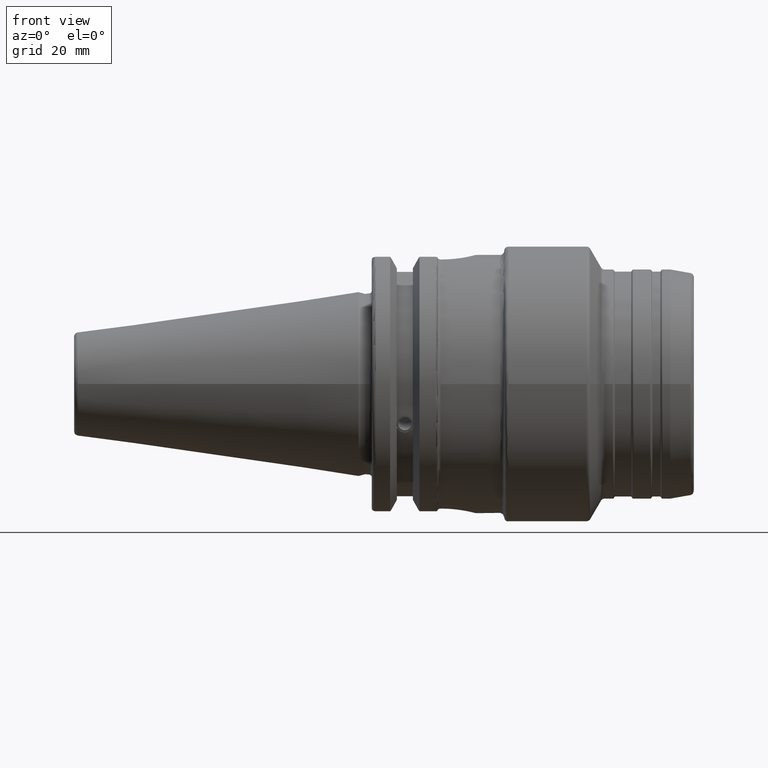
[diagram: clean part render]
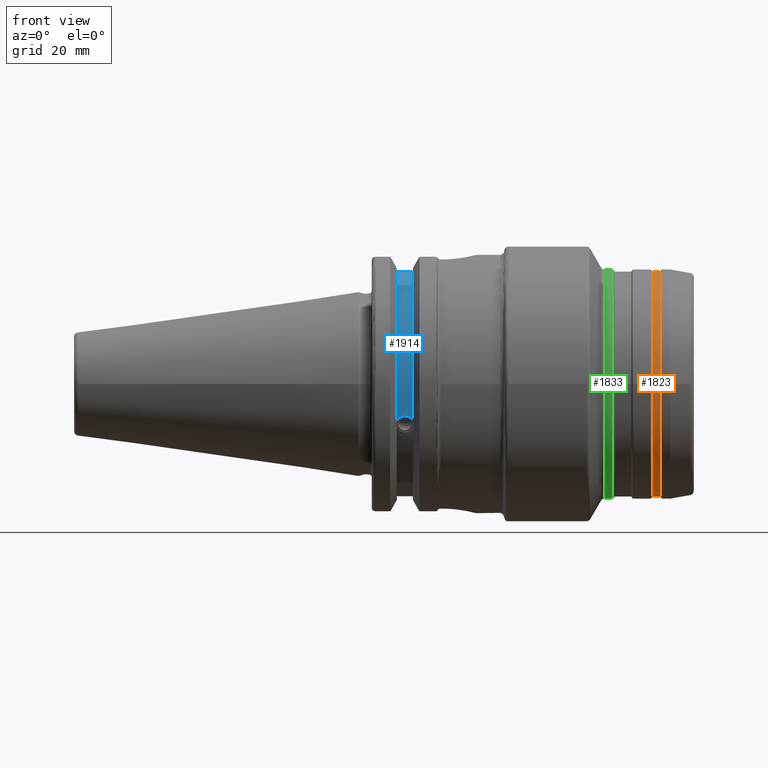
[diagram: same view with three faces highlighted in distinct colors, each labeled with its STEP entity id]
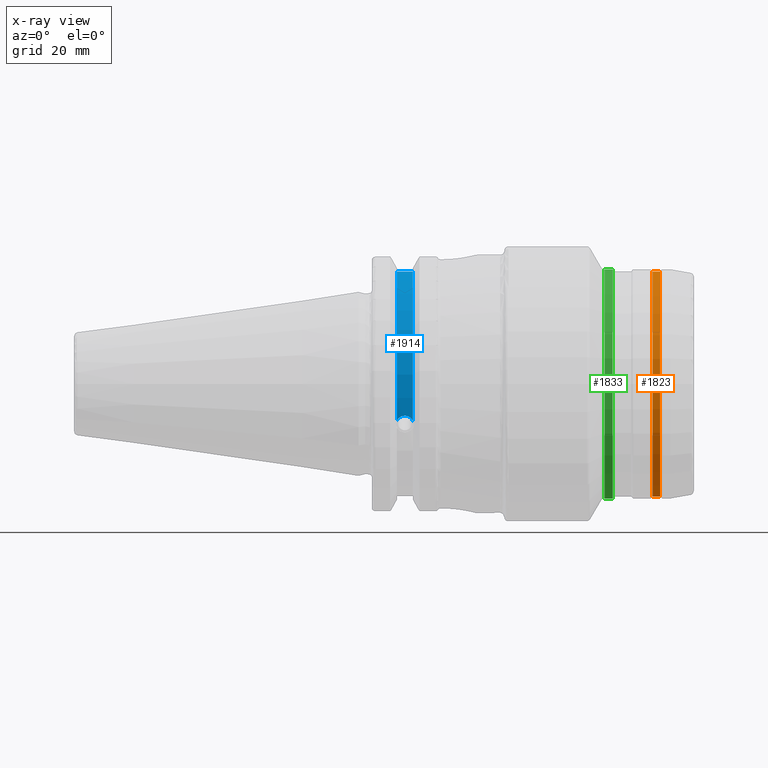
[diagram: x-ray of the same camera — body ghosted, the three highlighted faces saturated]
A machine part, front view with three faces highlighted in distinct colors.
The next image is the same camera in x-ray (body ghosted, the three faces saturated) — at least one of them is partly hidden behind the body in this view.
Their STEP definitions:

[orange] entity #1823 — the highlighted cylindrical surface (bore or boss wall) has radius 27 mm, axis along (1, 0, 0).
#152=LINE('',#2849,#245);
#245=VECTOR('',#2258,27.);
#336=CYLINDRICAL_SURFACE('',#1971,27.);
#377=FACE_OUTER_BOUND('',#483,.T.);
#483=EDGE_LOOP('',(#1248,#1249,#1250,#1251,#1252,#1253));
#614=CIRCLE('',#1968,27.);
#615=CIRCLE('',#1969,27.);
#617=CIRCLE('',#1972,27.);
#618=CIRCLE('',#1973,27.);
#741=VERTEX_POINT('',#2839);
#742=VERTEX_POINT('',#2841);
#743=VERTEX_POINT('',#2846);
#744=VERTEX_POINT('',#2847);
#939=EDGE_CURVE('',#741,#742,#614,.T.);
#940=EDGE_CURVE('',#742,#741,#615,.T.);
#942=EDGE_CURVE('',#743,#744,#617,.T.);
#943=EDGE_CURVE('',#743,#742,#152,.T.);
#944=EDGE_CURVE('',#744,#743,#618,.T.);
#1248=ORIENTED_EDGE('',*,*,#942,.F.);
#1249=ORIENTED_EDGE('',*,*,#943,.T.);
#1250=ORIENTED_EDGE('',*,*,#939,.F.);
#1251=ORIENTED_EDGE('',*,*,#940,.F.);
#1252=ORIENTED_EDGE('',*,*,#943,.F.);
#1253=ORIENTED_EDGE('',*,*,#944,.F.);
#1823=ADVANCED_FACE('',(#377),#336,.T.);
#1968=AXIS2_PLACEMENT_3D('',#2842,#2248,#2249);
#1969=AXIS2_PLACEMENT_3D('',#2843,#2250,#2251);
#1971=AXIS2_PLACEMENT_3D('',#2845,#2254,#2255);
#1972=AXIS2_PLACEMENT_3D('',#2848,#2256,#2257);
#1973=AXIS2_PLACEMENT_3D('',#2850,#2259,#2260);
#2248=DIRECTION('center_axis',(-1.,0.,0.));
#2249=DIRECTION('ref_axis',(0.,-1.,1.83697019872103E-16));
#2250=DIRECTION('center_axis',(-1.,0.,0.));
#2251=DIRECTION('ref_axis',(0.,-1.,1.83697019872103E-16));
#2254=DIRECTION('center_axis',(1.,0.,0.));
#2255=DIRECTION('ref_axis',(0.,1.,0.));
#2256=DIRECTION('center_axis',(1.,0.,0.));
#2257=DIRECTION('ref_axis',(0.,-1.,1.83697019872103E-16));
#2258=DIRECTION('',(-1.,0.,0.));
#2259=DIRECTION('center_axis',(1.,0.,0.));
#2260=DIRECTION('ref_axis',(0.,-1.,1.83697019872103E-16));
#2839=CARTESIAN_POINT('',(70.6154700538379,-3.30654635769785E-15,27.));
#2841=CARTESIAN_POINT('',(70.6154700538379,-27.,-3.30654635769785E-15));
#2842=CARTESIAN_POINT('Origin',(70.6154700538379,0.,0.));
#2843=CARTESIAN_POINT('Origin',(70.6154700538379,0.,0.));
#2845=CARTESIAN_POINT('Origin',(71.5,0.,0.));
#2846=CARTESIAN_POINT('',(72.3845299461621,-27.,-3.30654635769785E-15));
#2847=CARTESIAN_POINT('',(72.3845299461621,-3.30654635769785E-15,27.));
#2848=CARTESIAN_POINT('Origin',(72.3845299461621,0.,0.));
#2849=CARTESIAN_POINT('',(71.5,-27.,-3.30654635769785E-15));
#2850=CARTESIAN_POINT('Origin',(72.3845299461621,0.,0.));

[blue] entity #1914 — the highlighted cylindrical surface (partial cylindrical patch) has radius 28.15 mm, axis along (1, 0, 0).
#70=B_SPLINE_CURVE_WITH_KNOTS('',3,(#3329,#3330,#3331,#3332,#3333,#3334,
#3335,#3336,#3337,#3338,#3339,#3340,#3341,#3342),.UNSPECIFIED.,.F.,.F.,
(4,2,2,2,2,2,4),(0.401639126382403,0.474814416953736,0.553950208498303,
0.63308600004287,0.712221791587437,0.791357583132004,0.864532873703337),
 .UNSPECIFIED.);
#182=LINE('',#3174,#275);
#275=VECTOR('',#2444,10.);
#369=CYLINDRICAL_SURFACE('',#2187,28.15);
#468=FACE_OUTER_BOUND('',#587,.T.);
#587=EDGE_LOOP('',(#1751,#1752,#1753,#1754));
#722=CIRCLE('',#2184,28.15);
#724=CIRCLE('',#2188,28.15);
#817=VERTEX_POINT('',#3171);
#818=VERTEX_POINT('',#3173);
#844=VERTEX_POINT('',#3326);
#845=VERTEX_POINT('',#3328);
#1044=EDGE_CURVE('',#818,#817,#182,.T.);
#1083=EDGE_CURVE('',#845,#844,#70,.T.);
#1203=EDGE_CURVE('',#817,#845,#722,.T.);
#1205=EDGE_CURVE('',#818,#844,#724,.T.);
#1751=ORIENTED_EDGE('',*,*,#1083,.T.);
#1752=ORIENTED_EDGE('',*,*,#1205,.F.);
#1753=ORIENTED_EDGE('',*,*,#1044,.T.);
#1754=ORIENTED_EDGE('',*,*,#1203,.T.);
#1914=ADVANCED_FACE('',(#468),#369,.T.);
#2184=AXIS2_PLACEMENT_3D('',#3729,#2766,#2767);
#2187=AXIS2_PLACEMENT_3D('',#3732,#2772,#2773);
#2188=AXIS2_PLACEMENT_3D('',#3733,#2774,#2775);
#2444=DIRECTION('',(-1.,0.,0.));
#2766=DIRECTION('center_axis',(1.,0.,0.));
#2767=DIRECTION('ref_axis',(0.,0.,-1.));
#2772=DIRECTION('center_axis',(1.,0.,0.));
#2773=DIRECTION('ref_axis',(0.,-0.887654187951484,0.46051063246378));
#2774=DIRECTION('center_axis',(1.,0.,0.));
#2775=DIRECTION('ref_axis',(0.,0.,-1.));
#3171=CARTESIAN_POINT('',(9.2191,-8.19,26.932255754021));
#3173=CARTESIAN_POINT('',(13.0491,-8.19,26.932255754021));
#3174=CARTESIAN_POINT('',(11.1341,-8.19,26.932255754021));
#3326=CARTESIAN_POINT('',(13.0491,-26.734714844398,-8.81348524641212));
#3328=CARTESIAN_POINT('',(9.2191,-26.734714844398,-8.81348524641212));
#3329=CARTESIAN_POINT('Ctrl Pts',(9.2191,-26.734714844398,-8.81348524641212));
#3330=CARTESIAN_POINT('Ctrl Pts',(9.32533057097183,-26.8086519721597,-8.58920529678291));
#3331=CARTESIAN_POINT('Ctrl Pts',(9.4768201377051,-26.8729987454904,-8.38416529997369));
#3332=CARTESIAN_POINT('Ctrl Pts',(9.83557062657411,-26.9778908791383,-8.04056861831091));
#3333=CARTESIAN_POINT('Ctrl Pts',(10.0716450112988,-27.0233016799732,-7.88512567185902));
#3334=CARTESIAN_POINT('Ctrl Pts',(10.5890125426388,-27.0826966800569,-7.6786444840004));
#3335=CARTESIAN_POINT('Ctrl Pts',(10.8703140281848,-27.0968804077294,-7.62768458768512));
#3336=CARTESIAN_POINT('Ctrl Pts',(11.3978859718152,-27.0968804077294,-7.62768458768512));
#3337=CARTESIAN_POINT('Ctrl Pts',(11.6791874573612,-27.0826966800569,-7.6786444840004));
#3338=CARTESIAN_POINT('Ctrl Pts',(12.1965549887012,-27.0233016799732,-7.88512567185902));
#3339=CARTESIAN_POINT('Ctrl Pts',(12.4326293734259,-26.9778908791383,-8.04056861831091));
#3340=CARTESIAN_POINT('Ctrl Pts',(12.7913798622949,-26.8729987454904,-8.38416529997369));
#3341=CARTESIAN_POINT('Ctrl Pts',(12.9428694290282,-26.8086519721597,-8.58920529678291));
#3342=CARTESIAN_POINT('Ctrl Pts',(13.0491,-26.734714844398,-8.81348524641212));
#3729=CARTESIAN_POINT('Origin',(9.2191,0.,0.));
#3732=CARTESIAN_POINT('Origin',(11.1341,0.,0.));
#3733=CARTESIAN_POINT('Origin',(13.0491,0.,0.));

[green] entity #1833 — the highlighted cylindrical surface (bore or boss wall) has radius 27.5 mm, axis along (1, 0, 0).
#157=LINE('',#2901,#250);
#250=VECTOR('',#2325,27.5);
#339=CYLINDRICAL_SURFACE('',#2003,27.5);
#387=FACE_OUTER_BOUND('',#493,.T.);
#493=EDGE_LOOP('',(#1307,#1308,#1309,#1310,#1311,#1312));
#637=CIRCLE('',#2001,27.5);
#638=CIRCLE('',#2002,27.5);
#639=CIRCLE('',#2004,27.5);
#640=CIRCLE('',#2005,27.5);
#758=VERTEX_POINT('',#2894);
#759=VERTEX_POINT('',#2896);
#760=VERTEX_POINT('',#2900);
#761=VERTEX_POINT('',#2902);
#967=EDGE_CURVE('',#758,#759,#637,.T.);
#968=EDGE_CURVE('',#759,#758,#638,.T.);
#969=EDGE_CURVE('',#759,#760,#157,.T.);
#970=EDGE_CURVE('',#761,#760,#639,.T.);
#971=EDGE_CURVE('',#760,#761,#640,.T.);
#1307=ORIENTED_EDGE('',*,*,#968,.F.);
#1308=ORIENTED_EDGE('',*,*,#969,.T.);
#1309=ORIENTED_EDGE('',*,*,#970,.F.);
#1310=ORIENTED_EDGE('',*,*,#971,.F.);
#1311=ORIENTED_EDGE('',*,*,#969,.F.);
#1312=ORIENTED_EDGE('',*,*,#967,.F.);
#1833=ADVANCED_FACE('',(#387),#339,.T.);
#2001=AXIS2_PLACEMENT_3D('',#2897,#2319,#2320);
#2002=AXIS2_PLACEMENT_3D('',#2898,#2321,#2322);
#2003=AXIS2_PLACEMENT_3D('',#2899,#2323,#2324);
#2004=AXIS2_PLACEMENT_3D('',#2903,#2326,#2327);
#2005=AXIS2_PLACEMENT_3D('',#2904,#2328,#2329);
#2319=DIRECTION('center_axis',(1.,0.,0.));
#2320=DIRECTION('ref_axis',(0.,-1.,1.83697019872103E-16));
#2321=DIRECTION('center_axis',(1.,0.,0.));
#2322=DIRECTION('ref_axis',(0.,-1.,1.83697019872103E-16));
#2323=DIRECTION('center_axis',(1.,0.,0.));
#2324=DIRECTION('ref_axis',(0.,1.,0.));
#2325=DIRECTION('',(-1.,0.,0.));
#2326=DIRECTION('center_axis',(-1.,0.,0.));
#2327=DIRECTION('ref_axis',(0.,-1.,1.83697019872103E-16));
#2328=DIRECTION('center_axis',(-1.,0.,0.));
#2329=DIRECTION('ref_axis',(0.,-1.,1.83697019872103E-16));
#2894=CARTESIAN_POINT('',(60.9803847577293,-3.36777869765522E-15,27.5));
#2896=CARTESIAN_POINT('',(60.9803847577293,-27.5,-3.36777869765522E-15));
#2897=CARTESIAN_POINT('Origin',(60.9803847577293,0.,0.));
#2898=CARTESIAN_POINT('Origin',(60.9803847577293,0.,0.));
#2899=CARTESIAN_POINT('Origin',(59.8556624327026,0.,0.));
#2900=CARTESIAN_POINT('',(59.0773502691896,-27.5,-3.36777869765522E-15));
#2901=CARTESIAN_POINT('',(59.8556624327026,-27.5,-3.36777869765522E-15));
#2902=CARTESIAN_POINT('',(59.0773502691896,-3.36777869765522E-15,27.5));
#2903=CARTESIAN_POINT('Origin',(59.0773502691896,0.,0.));
#2904=CARTESIAN_POINT('Origin',(59.0773502691896,0.,0.));